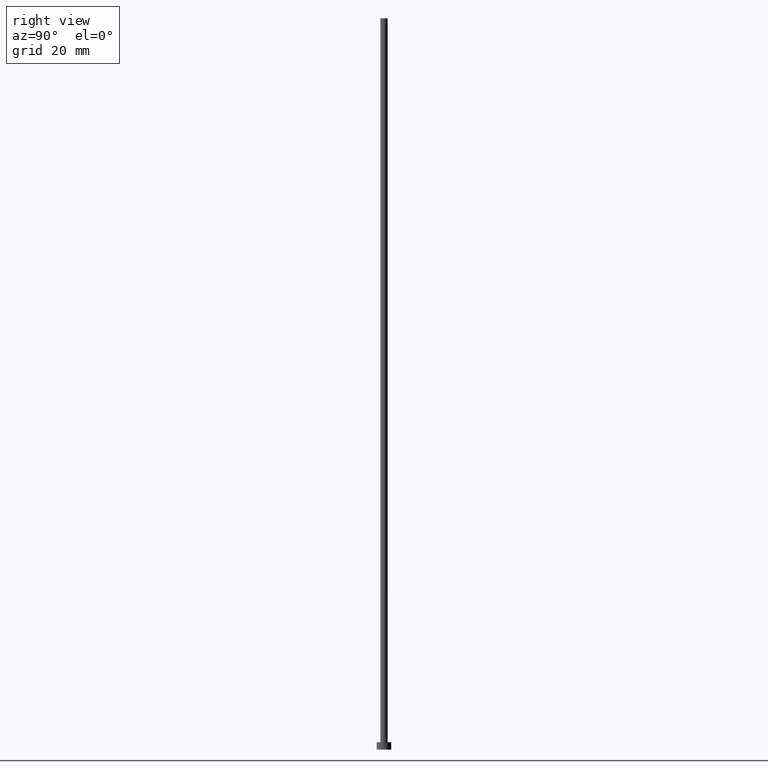
[diagram: clean part render]
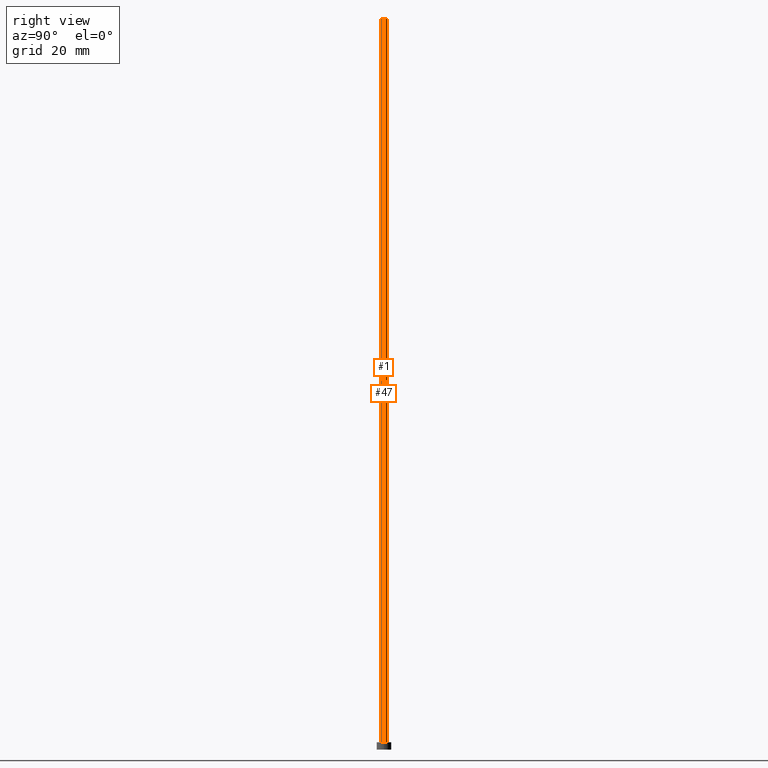
[diagram: same view with one multi-face feature highlighted, each face labeled with its STEP entity id]
A machine part, right view. The highlighted faces form ONE feature: a constant-radius fillet chain: 2 tangent blend faces with common blend radius 1 mm. The faces share edges in the B-rep.
Their STEP definitions:
[1] entity #47 (Cylinder):
#23 = AXIS2_PLACEMENT_3D ( 'NONE', #73, #25, #108 ) ;
#25 = DIRECTION ( 'NONE',  ( 0.000000000000000000, 0.000000000000000000, 1.000000000000000000 ) ) ;
#27 = LINE ( 'NONE', #189, #173 ) ;
#32 = ORIENTED_EDGE ( 'NONE', *, *, #61, .F. ) ;
#38 = ORIENTED_EDGE ( 'NONE', *, *, #245, .T. ) ;
#47 = ADVANCED_FACE ( 'NONE', ( #184 ), #147, .T. ) ;
#49 = AXIS2_PLACEMENT_3D ( 'NONE', #243, #69, #204 ) ;
#50 = CARTESIAN_POINT ( 'NONE',  ( -1.000000000000000000, 0.000000000000000000, 200.0000000000000000 ) ) ;
#58 = CIRCLE ( 'NONE', #23, 1.000000000000000000 ) ;
#60 = CARTESIAN_POINT ( 'NONE',  ( -1.000000000000000000, 0.000000000000000000, 200.0000000000000000 ) ) ;
#61 = EDGE_CURVE ( 'NONE', #232, #142, #237, .T. ) ;
#63 = VECTOR ( 'NONE', #143, 1000.000000000000000 ) ;
#69 = DIRECTION ( 'NONE',  ( 0.000000000000000000, 0.000000000000000000, 1.000000000000000000 ) ) ;
#73 = CARTESIAN_POINT ( 'NONE',  ( 0.000000000000000000, 0.000000000000000000, 200.0000000000000000 ) ) ;
#77 = DIRECTION ( 'NONE',  ( -0.000000000000000000, -0.000000000000000000, -1.000000000000000000 ) ) ;
#81 = EDGE_LOOP ( 'NONE', ( #123, #38, #235, #32 ) ) ;
#83 = DIRECTION ( 'NONE',  ( -0.000000000000000000, -0.000000000000000000, -1.000000000000000000 ) ) ;
#108 = DIRECTION ( 'NONE',  ( 1.000000000000000000, 0.000000000000000000, 0.000000000000000000 ) ) ;
#121 = CIRCLE ( 'NONE', #49, 1.000000000000000000 ) ;
#123 = ORIENTED_EDGE ( 'NONE', *, *, #212, .F. ) ;
#130 = CARTESIAN_POINT ( 'NONE',  ( 1.000000000000000000, 1.224646799147353207E-16, 2.000000000000000000 ) ) ;
#135 = CARTESIAN_POINT ( 'NONE',  ( 1.000000000000000000, 1.224646799147353207E-16, 200.0000000000000000 ) ) ;
#142 = VERTEX_POINT ( 'NONE', #226 ) ;
#143 = DIRECTION ( 'NONE',  ( -0.000000000000000000, -0.000000000000000000, -1.000000000000000000 ) ) ;
#147 = CYLINDRICAL_SURFACE ( 'NONE', #172, 1.000000000000000000 ) ;
#155 = EDGE_CURVE ( 'NONE', #158, #142, #121, .T. ) ;
#158 = VERTEX_POINT ( 'NONE', #130 ) ;
#164 = DIRECTION ( 'NONE',  ( -1.000000000000000000, 0.000000000000000000, 0.000000000000000000 ) ) ;
#172 = AXIS2_PLACEMENT_3D ( 'NONE', #255, #83, #164 ) ;
#173 = VECTOR ( 'NONE', #77, 1000.000000000000000 ) ;
#184 = FACE_OUTER_BOUND ( 'NONE', #81, .T. ) ;
#189 = CARTESIAN_POINT ( 'NONE',  ( 1.000000000000000000, 1.224646799147353207E-16, 200.0000000000000000 ) ) ;
#204 = DIRECTION ( 'NONE',  ( 1.000000000000000000, 0.000000000000000000, 0.000000000000000000 ) ) ;
#212 = EDGE_CURVE ( 'NONE', #229, #232, #58, .T. ) ;
#226 = CARTESIAN_POINT ( 'NONE',  ( -1.000000000000000000, 0.000000000000000000, 2.000000000000000000 ) ) ;
#229 = VERTEX_POINT ( 'NONE', #135 ) ;
#232 = VERTEX_POINT ( 'NONE', #50 ) ;
#235 = ORIENTED_EDGE ( 'NONE', *, *, #155, .T. ) ;
#237 = LINE ( 'NONE', #60, #63 ) ;
#243 = CARTESIAN_POINT ( 'NONE',  ( 0.000000000000000000, 0.000000000000000000, 2.000000000000000000 ) ) ;
#245 = EDGE_CURVE ( 'NONE', #229, #158, #27, .T. ) ;
#255 = CARTESIAN_POINT ( 'NONE',  ( 0.000000000000000000, 0.000000000000000000, 200.0000000000000000 ) ) ;
[2] entity #1 (Cylinder):
#1 = ADVANCED_FACE ( 'NONE', ( #46 ), #148, .T. ) ;
#14 = ORIENTED_EDGE ( 'NONE', *, *, #61, .T. ) ;
#16 = CARTESIAN_POINT ( 'NONE',  ( 0.000000000000000000, 0.000000000000000000, 200.0000000000000000 ) ) ;
#20 = DIRECTION ( 'NONE',  ( 1.000000000000000000, 0.000000000000000000, 0.000000000000000000 ) ) ;
#21 = EDGE_CURVE ( 'NONE', #232, #229, #30, .T. ) ;
#27 = LINE ( 'NONE', #189, #173 ) ;
#30 = CIRCLE ( 'NONE', #219, 1.000000000000000000 ) ;
#41 = CARTESIAN_POINT ( 'NONE',  ( 0.000000000000000000, 0.000000000000000000, 2.000000000000000000 ) ) ;
#46 = FACE_OUTER_BOUND ( 'NONE', #163, .T. ) ;
#50 = CARTESIAN_POINT ( 'NONE',  ( -1.000000000000000000, 0.000000000000000000, 200.0000000000000000 ) ) ;
#60 = CARTESIAN_POINT ( 'NONE',  ( -1.000000000000000000, 0.000000000000000000, 200.0000000000000000 ) ) ;
#61 = EDGE_CURVE ( 'NONE', #232, #142, #237, .T. ) ;
#63 = VECTOR ( 'NONE', #143, 1000.000000000000000 ) ;
#66 = EDGE_CURVE ( 'NONE', #142, #158, #127, .T. ) ;
#77 = DIRECTION ( 'NONE',  ( -0.000000000000000000, -0.000000000000000000, -1.000000000000000000 ) ) ;
#105 = ORIENTED_EDGE ( 'NONE', *, *, #21, .F. ) ;
#120 = DIRECTION ( 'NONE',  ( 0.000000000000000000, 0.000000000000000000, 1.000000000000000000 ) ) ;
#125 = DIRECTION ( 'NONE',  ( -1.000000000000000000, 0.000000000000000000, 0.000000000000000000 ) ) ;
#127 = CIRCLE ( 'NONE', #250, 1.000000000000000000 ) ;
#130 = CARTESIAN_POINT ( 'NONE',  ( 1.000000000000000000, 1.224646799147353207E-16, 2.000000000000000000 ) ) ;
#135 = CARTESIAN_POINT ( 'NONE',  ( 1.000000000000000000, 1.224646799147353207E-16, 200.0000000000000000 ) ) ;
#136 = ORIENTED_EDGE ( 'NONE', *, *, #66, .T. ) ;
#142 = VERTEX_POINT ( 'NONE', #226 ) ;
#143 = DIRECTION ( 'NONE',  ( -0.000000000000000000, -0.000000000000000000, -1.000000000000000000 ) ) ;
#148 = CYLINDRICAL_SURFACE ( 'NONE', #233, 1.000000000000000000 ) ;
#158 = VERTEX_POINT ( 'NONE', #130 ) ;
#163 = EDGE_LOOP ( 'NONE', ( #169, #105, #14, #136 ) ) ;
#169 = ORIENTED_EDGE ( 'NONE', *, *, #245, .F. ) ;
#173 = VECTOR ( 'NONE', #77, 1000.000000000000000 ) ;
#189 = CARTESIAN_POINT ( 'NONE',  ( 1.000000000000000000, 1.224646799147353207E-16, 200.0000000000000000 ) ) ;
#199 = DIRECTION ( 'NONE',  ( 0.000000000000000000, 0.000000000000000000, 1.000000000000000000 ) ) ;
#216 = DIRECTION ( 'NONE',  ( 1.000000000000000000, 0.000000000000000000, 0.000000000000000000 ) ) ;
#219 = AXIS2_PLACEMENT_3D ( 'NONE', #220, #199, #216 ) ;
#220 = CARTESIAN_POINT ( 'NONE',  ( 0.000000000000000000, 0.000000000000000000, 200.0000000000000000 ) ) ;
#226 = CARTESIAN_POINT ( 'NONE',  ( -1.000000000000000000, 0.000000000000000000, 2.000000000000000000 ) ) ;
#229 = VERTEX_POINT ( 'NONE', #135 ) ;
#232 = VERTEX_POINT ( 'NONE', #50 ) ;
#233 = AXIS2_PLACEMENT_3D ( 'NONE', #16, #241, #125 ) ;
#237 = LINE ( 'NONE', #60, #63 ) ;
#241 = DIRECTION ( 'NONE',  ( -0.000000000000000000, -0.000000000000000000, -1.000000000000000000 ) ) ;
#245 = EDGE_CURVE ( 'NONE', #229, #158, #27, .T. ) ;
#250 = AXIS2_PLACEMENT_3D ( 'NONE', #41, #120, #20 ) ;